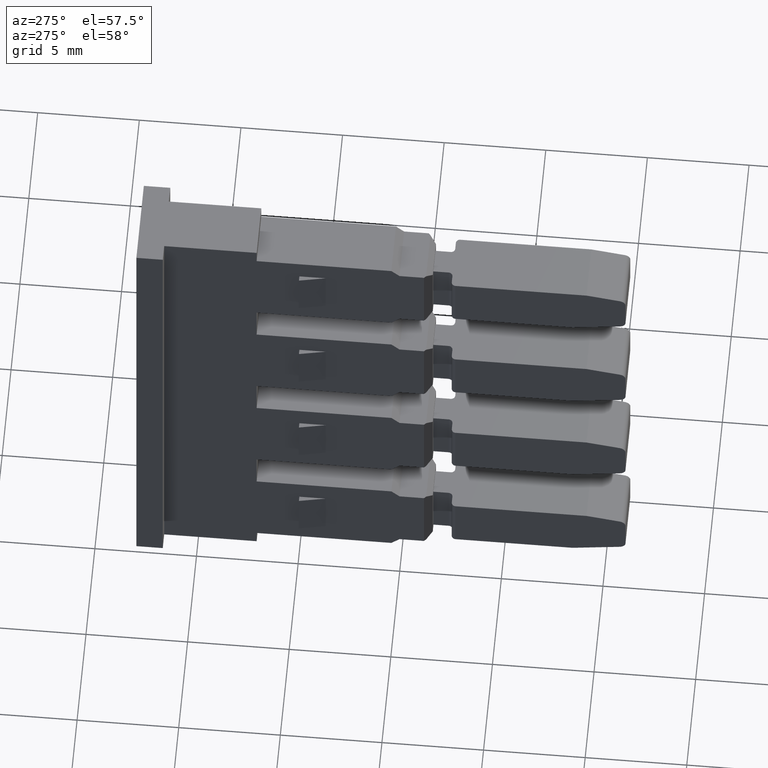
[diagram: clean part render]
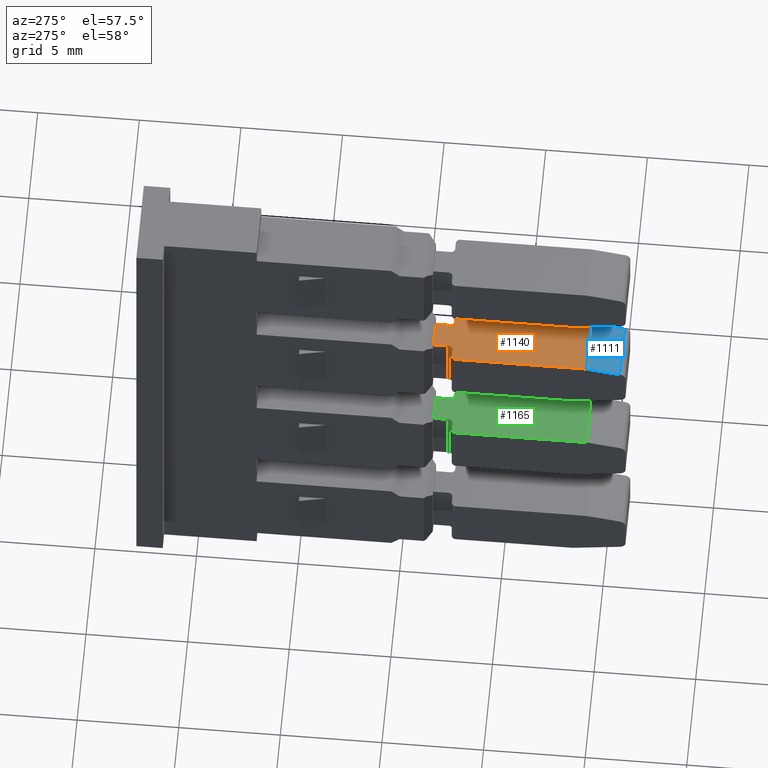
[diagram: same view with three faces highlighted in distinct colors, each labeled with its STEP entity id]
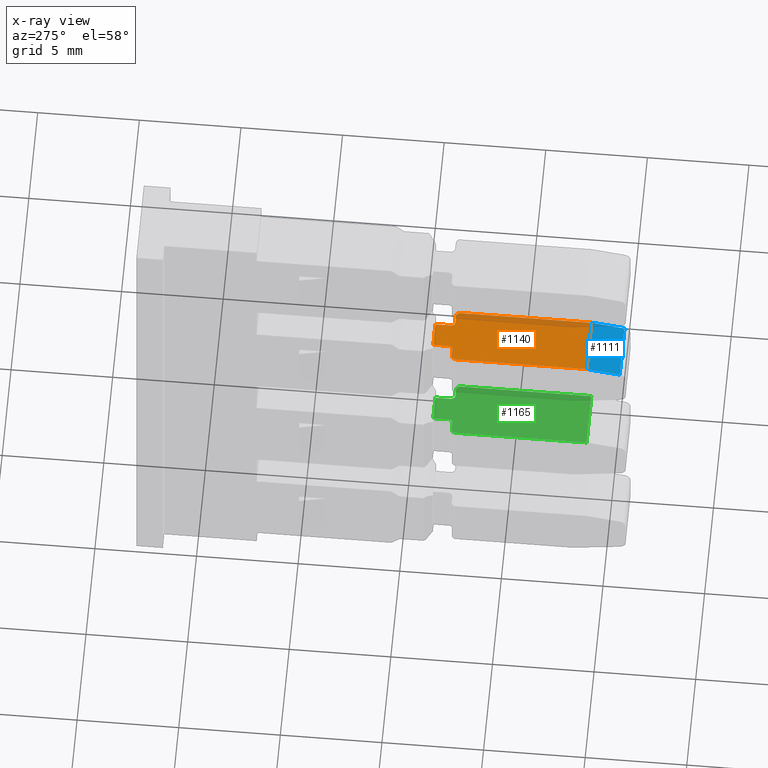
[diagram: x-ray of the same camera — body ghosted, the three highlighted faces saturated]
A machine part, auxiliary view with three faces highlighted in distinct colors.
The next image is the same camera in x-ray (body ghosted, the three faces saturated) — at least one of them is partly hidden behind the body in this view.
Their STEP definitions:

[orange] entity #1140 — the highlighted planar face has unit normal (-0, -0, 1).
#2 = CIRCLE ( 'NONE', #6, 0.1999999999999779700 ) ;
#3 = CIRCLE ( 'NONE', #4, 0.1999999999999779700 ) ;
#4 = AXIS2_PLACEMENT_3D ( 'NONE', #3200, #3173, #3201 ) ;
#6 = AXIS2_PLACEMENT_3D ( 'NONE', #3179, #3192, #3198 ) ;
#19 = AXIS2_PLACEMENT_3D ( 'NONE', #3280, #3293, #3294 ) ;
#27 = VECTOR ( 'NONE', #3220, 1000.000000000000000 ) ;
#30 = AXIS2_PLACEMENT_3D ( 'NONE', #3229, #3225, #3242 ) ;
#35 = CIRCLE ( 'NONE', #30, 0.1999999999999779700 ) ;
#36 = VECTOR ( 'NONE', #3297, 1000.000000000000200 ) ;
#37 = CIRCLE ( 'NONE', #19, 0.1999999999999779700 ) ;
#55 = VECTOR ( 'NONE', #2338, 1000.000000000000000 ) ;
#100 = VECTOR ( 'NONE', #2260, 1000.000000000000200 ) ;
#116 = VECTOR ( 'NONE', #2423, 1000.000000000000100 ) ;
#525 = AXIS2_PLACEMENT_3D ( 'NONE', #3995, #3989, #3990 ) ;
#650 = VECTOR ( 'NONE', #3217, 1000.000000000000000 ) ;
#654 = VECTOR ( 'NONE', #3120, 1000.000000000000000 ) ;
#657 = VECTOR ( 'NONE', #3187, 1000.000000000000100 ) ;
#660 = EDGE_CURVE ( 'NONE', #1624, #1625, #3130, .T. ) ;
#665 = EDGE_CURVE ( 'NONE', #1642, #1647, #3137, .T. ) ;
#666 = EDGE_CURVE ( 'NONE', #1622, #1647, #3191, .T. ) ;
#668 = EDGE_CURVE ( 'NONE', #1622, #1656, #3, .T. ) ;
#670 = EDGE_CURVE ( 'NONE', #1625, #1651, #2, .T. ) ;
#680 = EDGE_CURVE ( 'NONE', #1627, #1635, #35, .T. ) ;
#690 = EDGE_CURVE ( 'NONE', #1656, #1627, #3259, .T. ) ;
#702 = EDGE_CURVE ( 'NONE', #1609, #1624, #37, .T. ) ;
#703 = EDGE_CURVE ( 'NONE', #1642, #1651, #3302, .T. ) ;
#716 = EDGE_CURVE ( 'NONE', #1635, #1660, #2240, .T. ) ;
#740 = EDGE_CURVE ( 'NONE', #1675, #1609, #2353, .T. ) ;
#768 = EDGE_CURVE ( 'NONE', #1660, #1675, #2438, .T. ) ;
#1140 = ADVANCED_FACE ( 'NONE', ( #3987 ), #3988, .T. ) ;
#1389 = ORIENTED_EDGE ( 'NONE', *, *, #768, .T. ) ;
#1398 = ORIENTED_EDGE ( 'NONE', *, *, #702, .T. ) ;
#1401 = ORIENTED_EDGE ( 'NONE', *, *, #690, .T. ) ;
#1412 = ORIENTED_EDGE ( 'NONE', *, *, #680, .T. ) ;
#1427 = ORIENTED_EDGE ( 'NONE', *, *, #716, .T. ) ;
#1432 = ORIENTED_EDGE ( 'NONE', *, *, #660, .T. ) ;
#1437 = ORIENTED_EDGE ( 'NONE', *, *, #740, .T. ) ;
#1446 = ORIENTED_EDGE ( 'NONE', *, *, #670, .T. ) ;
#1481 = ORIENTED_EDGE ( 'NONE', *, *, #666, .F. ) ;
#1504 = ORIENTED_EDGE ( 'NONE', *, *, #703, .F. ) ;
#1506 = ORIENTED_EDGE ( 'NONE', *, *, #665, .T. ) ;
#1509 = ORIENTED_EDGE ( 'NONE', *, *, #668, .T. ) ;
#1609 = VERTEX_POINT ( 'NONE', #4668 ) ;
#1622 = VERTEX_POINT ( 'NONE', #4651 ) ;
#1624 = VERTEX_POINT ( 'NONE', #4653 ) ;
#1625 = VERTEX_POINT ( 'NONE', #4675 ) ;
#1627 = VERTEX_POINT ( 'NONE', #4681 ) ;
#1635 = VERTEX_POINT ( 'NONE', #4684 ) ;
#1642 = VERTEX_POINT ( 'NONE', #4730 ) ;
#1647 = VERTEX_POINT ( 'NONE', #4717 ) ;
#1651 = VERTEX_POINT ( 'NONE', #4757 ) ;
#1656 = VERTEX_POINT ( 'NONE', #4754 ) ;
#1660 = VERTEX_POINT ( 'NONE', #4749 ) ;
#1675 = VERTEX_POINT ( 'NONE', #4747 ) ;
#1900 = EDGE_LOOP ( 'NONE', ( #1401, #1412, #1427, #1389, #1437, #1398, #1432, #1446, #1504, #1506, #1481, #1509 ) ) ;
#2240 = LINE ( 'NONE', #2242, #100 ) ;
#2242 = CARTESIAN_POINT ( 'NONE',  ( 1392.682646574239900, 1099.575047856852300, 1.500000000192784700 ) ) ;
#2260 = DIRECTION ( 'NONE',  ( 9.483855583750710300E-006, 0.9999999999550282000, 1.418215388288594500E-012 ) ) ;
#2338 = DIRECTION ( 'NONE',  ( 0.0000000000000000000, -1.000000000000000000, -1.418215371961189400E-012 ) ) ;
#2341 = CARTESIAN_POINT ( 'NONE',  ( 1391.482304226623000, 1072.329111112720100, 1.500000000154138900 ) ) ;
#2353 = LINE ( 'NONE', #2341, #55 ) ;
#2415 = CARTESIAN_POINT ( 'NONE',  ( 1392.682297049867900, 1063.477105422906800, 1.500000000141587200 ) ) ;
#2423 = DIRECTION ( 'NONE',  ( -0.9999999999550282000, 9.483848618906044600E-006, -1.807014427811587200E-015 ) ) ;
#2438 = LINE ( 'NONE', #2415, #116 ) ;
#3120 = DIRECTION ( 'NONE',  ( -1.000000000000000000, 2.451137064545806300E-027, -1.728324987167663900E-015 ) ) ;
#3130 = LINE ( 'NONE', #3168, #654 ) ;
#3137 = LINE ( 'NONE', #3159, #657 ) ;
#3159 = CARTESIAN_POINT ( 'NONE',  ( 1390.984398344382700, 1055.875568134593800, 1.500000000130803400 ) ) ;
#3168 = CARTESIAN_POINT ( 'NONE',  ( 1392.082388177684200, 1062.520390669162000, 1.500000000140228900 ) ) ;
#3173 = DIRECTION ( 'NONE',  ( 0.0000000000000000000, 0.0000000000000000000, 1.000000000000000000 ) ) ;
#3179 = CARTESIAN_POINT ( 'NONE',  ( 1390.934459466150200, 1062.320391597015900, 1.500000000138654400 ) ) ;
#3186 = CARTESIAN_POINT ( 'NONE',  ( 1393.429974878271900, 1046.275396763449900, 1.500000000140230700 ) ) ;
#3187 = DIRECTION ( 'NONE',  ( 0.9999999999550282000, -9.483852898471060400E-006, 1.777649702392805700E-015 ) ) ;
#3191 = LINE ( 'NONE', #3186, #650 ) ;
#3192 = DIRECTION ( 'NONE',  ( -3.653909838371683000E-024, 3.465315322472135600E-029, 1.000000000000000000 ) ) ;
#3198 = DIRECTION ( 'NONE',  ( 1.000000000000000000, 0.0000000000000000000, 0.0000000000000000000 ) ) ;
#3200 = CARTESIAN_POINT ( 'NONE',  ( 1393.230127046556600, 1062.320374567164400, 1.500000000140230500 ) ) ;
#3201 = DIRECTION ( 'NONE',  ( 1.000000000000000000, 0.0000000000000000000, 0.0000000000000000000 ) ) ;
#3217 = DIRECTION ( 'NONE',  ( -9.483858160132053900E-006, -0.9999999999550282000, -0.0000000000000000000 ) ) ;
#3220 = DIRECTION ( 'NONE',  ( -1.000000000000000000, 2.451137064545806300E-027, -1.728324987167663900E-015 ) ) ;
#3225 = DIRECTION ( 'NONE',  ( 1.714874837238479500E-015, -1.626362530130914600E-020, -1.000000000000000000 ) ) ;
#3229 = CARTESIAN_POINT ( 'NONE',  ( 1392.882297049858800, 1062.720375494987400, 1.500000000140229800 ) ) ;
#3242 = DIRECTION ( 'NONE',  ( -1.000000000000000000, 0.0000000000000000000, -2.168404344971247500E-015 ) ) ;
#3251 = CARTESIAN_POINT ( 'NONE',  ( 1392.082388177684200, 1062.520374567159700, 1.500000000140228900 ) ) ;
#3259 = LINE ( 'NONE', #3251, #27 ) ;
#3280 = CARTESIAN_POINT ( 'NONE',  ( 1391.282297049932600, 1062.720390669156400, 1.500000000140784100 ) ) ;
#3293 = DIRECTION ( 'NONE',  ( 1.714874837238484400E-015, -1.626362530130919100E-020, -1.000000000000000000 ) ) ;
#3294 = DIRECTION ( 'NONE',  ( 1.000000000000000000, 0.0000000000000000000, 2.168404344971247500E-015 ) ) ;
#3297 = DIRECTION ( 'NONE',  ( 9.483853007369366800E-006, 0.9999999999550282000, -0.0000000000000000000 ) ) ;
#3302 = LINE ( 'NONE', #3303, #36 ) ;
#3303 = CARTESIAN_POINT ( 'NONE',  ( 1390.734307297966100, 1046.275417586839900, 1.500000000136007200 ) ) ;
#3987 = FACE_OUTER_BOUND ( 'NONE', #1900, .T. ) ;
#3988 = PLANE ( 'NONE',  #525 ) ;
#3989 = DIRECTION ( 'NONE',  ( -1.728324987167663900E-015, -1.418215371961189400E-012, 1.000000000000000000 ) ) ;
#3990 = DIRECTION ( 'NONE',  ( 0.0000000000000000000, -1.000000000000000000, -1.418215371961189400E-012 ) ) ;
#3995 = CARTESIAN_POINT ( 'NONE',  ( 1392.082388177684200, 1072.329111112720100, 1.500000000154140000 ) ) ;
#4651 = CARTESIAN_POINT ( 'NONE',  ( 1393.430127046554400, 1062.320373618778600, 1.500000000140230700 ) ) ;
#4653 = CARTESIAN_POINT ( 'NONE',  ( 1391.282296812836200, 1062.520390669159500, 1.500000000140784100 ) ) ;
#4668 = CARTESIAN_POINT ( 'NONE',  ( 1391.482300638278000, 1062.720390194980800, 1.500000000140784300 ) ) ;
#4675 = CARTESIAN_POINT ( 'NONE',  ( 1390.934459703250000, 1062.520391133091400, 1.500000000138654400 ) ) ;
#4681 = CARTESIAN_POINT ( 'NONE',  ( 1392.882296812762400, 1062.520375031073900, 1.500000000140229800 ) ) ;
#4684 = CARTESIAN_POINT ( 'NONE',  ( 1392.682297049863100, 1062.720376917582800, 1.500000000140368800 ) ) ;
#4717 = CARTESIAN_POINT ( 'NONE',  ( 1393.430065924738100, 1055.875547311211200, 1.500000000137393900 ) ) ;
#4730 = CARTESIAN_POINT ( 'NONE',  ( 1390.734398344382700, 1055.875568134593800, 1.500000000135636600 ) ) ;
#4747 = CARTESIAN_POINT ( 'NONE',  ( 1391.482304226623000, 1063.477116803461300, 1.500000000141583900 ) ) ;
#4749 = CARTESIAN_POINT ( 'NONE',  ( 1392.682304226567800, 1063.477105422838600, 1.500000000141587200 ) ) ;
#4754 = CARTESIAN_POINT ( 'NONE',  ( 1393.230127046556600, 1062.520374567159700, 1.500000000140230900 ) ) ;
#4757 = CARTESIAN_POINT ( 'NONE',  ( 1390.734459466159300, 1062.320393493786700, 1.500000000137330800 ) ) ;

[blue] entity #1111 — the highlighted planar face has unit normal (0, 0.1736, -0.9848).
#23 = VECTOR ( 'NONE', #3291, 1000.000000000000200 ) ;
#38 = VECTOR ( 'NONE', #3279, 1000.000000000000100 ) ;
#450 = AXIS2_PLACEMENT_3D ( 'NONE', #3815, #3795, #3818 ) ;
#649 = VECTOR ( 'NONE', #3123, 1000.000000000000200 ) ;
#657 = VECTOR ( 'NONE', #3187, 1000.000000000000100 ) ;
#662 = EDGE_CURVE ( 'NONE', #1646, #1642, #3150, .T. ) ;
#665 = EDGE_CURVE ( 'NONE', #1642, #1647, #3137, .T. ) ;
#699 = EDGE_CURVE ( 'NONE', #1616, #1646, #3304, .T. ) ;
#701 = EDGE_CURVE ( 'NONE', #1647, #1616, #3300, .T. ) ;
#1111 = ADVANCED_FACE ( 'NONE', ( #3803 ), #3840, .F. ) ;
#1399 = ORIENTED_EDGE ( 'NONE', *, *, #699, .F. ) ;
#1404 = ORIENTED_EDGE ( 'NONE', *, *, #665, .F. ) ;
#1420 = ORIENTED_EDGE ( 'NONE', *, *, #662, .F. ) ;
#1442 = ORIENTED_EDGE ( 'NONE', *, *, #701, .F. ) ;
#1616 = VERTEX_POINT ( 'NONE', #4670 ) ;
#1642 = VERTEX_POINT ( 'NONE', #4730 ) ;
#1646 = VERTEX_POINT ( 'NONE', #4709 ) ;
#1647 = VERTEX_POINT ( 'NONE', #4717 ) ;
#1909 = EDGE_LOOP ( 'NONE', ( #1404, #1420, #1399, #1442 ) ) ;
#3123 = DIRECTION ( 'NONE',  ( 9.339771988604050900E-006, 0.9848077529676954000, 0.1736481776682011800 ) ) ;
#3137 = LINE ( 'NONE', #3159, #657 ) ;
#3150 = LINE ( 'NONE', #3171, #649 ) ;
#3159 = CARTESIAN_POINT ( 'NONE',  ( 1390.984398344382700, 1055.875568134593800, 1.500000000130803400 ) ) ;
#3171 = CARTESIAN_POINT ( 'NONE',  ( 1390.734382873529500, 1054.244284602283200, 1.212360700193368100 ) ) ;
#3187 = DIRECTION ( 'NONE',  ( 0.9999999999550282000, -9.483852898471060400E-006, 1.777649702392805700E-015 ) ) ;
#3271 = CARTESIAN_POINT ( 'NONE',  ( 1393.180050453875800, 1054.244263778889000, 1.212360700193393400 ) ) ;
#3279 = DIRECTION ( 'NONE',  ( -9.339777484562960100E-006, -0.9848077529676954000, -0.1736481776682013400 ) ) ;
#3291 = DIRECTION ( 'NONE',  ( -0.9999999999550282000, 9.483855527851807800E-006, -1.145596474880113500E-014 ) ) ;
#3292 = CARTESIAN_POINT ( 'NONE',  ( 1393.430065924738300, 1055.875547311204600, 1.500000000141142900 ) ) ;
#3300 = LINE ( 'NONE', #3292, #38 ) ;
#3304 = LINE ( 'NONE', #3271, #23 ) ;
#3795 = DIRECTION ( 'NONE',  ( 1.646854241075528400E-006, 0.1736481776603922600, -0.9848077530119840900 ) ) ;
#3803 = FACE_OUTER_BOUND ( 'NONE', #1909, .T. ) ;
#3815 = CARTESIAN_POINT ( 'NONE',  ( 1381.908886635870900, 1055.875654205436100, 1.500000000140211600 ) ) ;
#3818 = DIRECTION ( 'NONE',  ( 0.0000000000000000000, 0.9848077530133194600, 0.1736481776606277300 ) ) ;
#3840 = PLANE ( 'NONE',  #450 ) ;
#4670 = CARTESIAN_POINT ( 'NONE',  ( 1393.430050453876000, 1054.244263778889300, 1.212360700193435800 ) ) ;
#4709 = CARTESIAN_POINT ( 'NONE',  ( 1390.734382873529500, 1054.244284602283400, 1.212360700193411100 ) ) ;
#4717 = CARTESIAN_POINT ( 'NONE',  ( 1393.430065924738100, 1055.875547311211200, 1.500000000137393900 ) ) ;
#4730 = CARTESIAN_POINT ( 'NONE',  ( 1390.734398344382700, 1055.875568134593800, 1.500000000135636600 ) ) ;

[green] entity #1165 — the highlighted planar face has unit normal (-0, -0, 1).
#183 = AXIS2_PLACEMENT_3D ( 'NONE', #2691, #2692, #2752 ) ;
#213 = CIRCLE ( 'NONE', #183, 0.1999999999999779700 ) ;
#229 = VECTOR ( 'NONE', #4159, 1000.000000000000000 ) ;
#287 = AXIS2_PLACEMENT_3D ( 'NONE', #3312, #3340, #3341 ) ;
#294 = CIRCLE ( 'NONE', #287, 0.1999999999999779700 ) ;
#297 = VECTOR ( 'NONE', #4265, 1000.000000000000100 ) ;
#322 = CIRCLE ( 'NONE', #342, 0.1999999999999779700 ) ;
#342 = AXIS2_PLACEMENT_3D ( 'NONE', #3347, #3348, #3318 ) ;
#352 = VECTOR ( 'NONE', #3427, 1000.000000000000100 ) ;
#370 = VECTOR ( 'NONE', #3413, 1000.000000000000000 ) ;
#374 = VECTOR ( 'NONE', #3487, 1000.000000000000200 ) ;
#380 = VECTOR ( 'NONE', #3384, 1000.000000000000000 ) ;
#386 = AXIS2_PLACEMENT_3D ( 'NONE', #3504, #3522, #3525 ) ;
#392 = VECTOR ( 'NONE', #3489, 1000.000000000000000 ) ;
#400 = VECTOR ( 'NONE', #3490, 1000.000000000000200 ) ;
#402 = CIRCLE ( 'NONE', #386, 0.1999999999999779700 ) ;
#551 = AXIS2_PLACEMENT_3D ( 'NONE', #4092, #4101, #4056 ) ;
#868 = EDGE_CURVE ( 'NONE', #1778, #1836, #213, .T. ) ;
#905 = EDGE_CURVE ( 'NONE', #1778, #1814, #4190, .T. ) ;
#932 = EDGE_CURVE ( 'NONE', #1843, #1814, #4280, .T. ) ;
#962 = EDGE_CURVE ( 'NONE', #1852, #1907, #322, .T. ) ;
#970 = EDGE_CURVE ( 'NONE', #1901, #1853, #294, .T. ) ;
#989 = EDGE_CURVE ( 'NONE', #1836, #1852, #3379, .T. ) ;
#992 = EDGE_CURVE ( 'NONE', #1885, #1794, #3396, .T. ) ;
#1003 = EDGE_CURVE ( 'NONE', #1794, #1901, #3409, .T. ) ;
#1011 = EDGE_CURVE ( 'NONE', #1843, #1736, #3459, .T. ) ;
#1019 = EDGE_CURVE ( 'NONE', #1853, #1831, #3417, .T. ) ;
#1020 = EDGE_CURVE ( 'NONE', #1907, #1885, #3468, .T. ) ;
#1022 = EDGE_CURVE ( 'NONE', #1831, #1736, #402, .T. ) ;
#1165 = ADVANCED_FACE ( 'NONE', ( #4070 ), #4062, .T. ) ;
#1736 = VERTEX_POINT ( 'NONE', #4805 ) ;
#1778 = VERTEX_POINT ( 'NONE', #4856 ) ;
#1794 = VERTEX_POINT ( 'NONE', #4839 ) ;
#1814 = VERTEX_POINT ( 'NONE', #4870 ) ;
#1831 = VERTEX_POINT ( 'NONE', #4921 ) ;
#1836 = VERTEX_POINT ( 'NONE', #4932 ) ;
#1843 = VERTEX_POINT ( 'NONE', #4931 ) ;
#1852 = VERTEX_POINT ( 'NONE', #4955 ) ;
#1853 = VERTEX_POINT ( 'NONE', #4917 ) ;
#1885 = VERTEX_POINT ( 'NONE', #4922 ) ;
#1901 = VERTEX_POINT ( 'NONE', #4929 ) ;
#1907 = VERTEX_POINT ( 'NONE', #4989 ) ;
#2062 = EDGE_LOOP ( 'NONE', ( #3145, #3122, #3125, #3167, #3131, #3146, #3121, #3124, #3142, #3143, #3089, #3133 ) ) ;
#2691 = CARTESIAN_POINT ( 'NONE',  ( 1393.230127046556600, 1062.320374567162200, -5.199999999859770100 ) ) ;
#2692 = DIRECTION ( 'NONE',  ( 0.0000000000000000000, 0.0000000000000000000, 1.000000000000000000 ) ) ;
#2752 = DIRECTION ( 'NONE',  ( 1.000000000000000000, 0.0000000000000000000, 0.0000000000000000000 ) ) ;
#3089 = ORIENTED_EDGE ( 'NONE', *, *, #905, .F. ) ;
#3121 = ORIENTED_EDGE ( 'NONE', *, *, #1019, .T. ) ;
#3122 = ORIENTED_EDGE ( 'NONE', *, *, #962, .T. ) ;
#3124 = ORIENTED_EDGE ( 'NONE', *, *, #1022, .T. ) ;
#3125 = ORIENTED_EDGE ( 'NONE', *, *, #1020, .T. ) ;
#3131 = ORIENTED_EDGE ( 'NONE', *, *, #1003, .T. ) ;
#3133 = ORIENTED_EDGE ( 'NONE', *, *, #868, .T. ) ;
#3142 = ORIENTED_EDGE ( 'NONE', *, *, #1011, .F. ) ;
#3143 = ORIENTED_EDGE ( 'NONE', *, *, #932, .T. ) ;
#3145 = ORIENTED_EDGE ( 'NONE', *, *, #989, .T. ) ;
#3146 = ORIENTED_EDGE ( 'NONE', *, *, #970, .T. ) ;
#3167 = ORIENTED_EDGE ( 'NONE', *, *, #992, .T. ) ;
#3312 = CARTESIAN_POINT ( 'NONE',  ( 1391.282297049932600, 1062.720390669154300, -5.199999999859216800 ) ) ;
#3318 = DIRECTION ( 'NONE',  ( -1.000000000000000000, 0.0000000000000000000, 0.0000000000000000000 ) ) ;
#3340 = DIRECTION ( 'NONE',  ( 1.714874837238484400E-015, -1.626362530130919100E-020, -1.000000000000000000 ) ) ;
#3341 = DIRECTION ( 'NONE',  ( 1.000000000000000000, 0.0000000000000000000, 0.0000000000000000000 ) ) ;
#3347 = CARTESIAN_POINT ( 'NONE',  ( 1392.882297049858800, 1062.720375494985300, -5.199999999859770100 ) ) ;
#3348 = DIRECTION ( 'NONE',  ( 1.714874837238479500E-015, -1.626362530130914600E-020, -1.000000000000000000 ) ) ;
#3379 = LINE ( 'NONE', #3382, #380 ) ;
#3382 = CARTESIAN_POINT ( 'NONE',  ( 1392.082388177684200, 1062.520374567157400, -5.199999999859771900 ) ) ;
#3384 = DIRECTION ( 'NONE',  ( -1.000000000000000000, 2.451137064545806300E-027, -1.728324987167663900E-015 ) ) ;
#3396 = LINE ( 'NONE', #3412, #352 ) ;
#3402 = CARTESIAN_POINT ( 'NONE',  ( 1391.482304226623000, 1072.329111112717800, -5.199999999845861300 ) ) ;
#3409 = LINE ( 'NONE', #3402, #370 ) ;
#3412 = CARTESIAN_POINT ( 'NONE',  ( 1392.682297049867900, 1063.477105422904700, -5.199999999858413000 ) ) ;
#3413 = DIRECTION ( 'NONE',  ( 0.0000000000000000000, -1.000000000000000000, -1.418215371961189400E-012 ) ) ;
#3417 = LINE ( 'NONE', #3453, #392 ) ;
#3427 = DIRECTION ( 'NONE',  ( -0.9999999999550282000, 9.483848618906044600E-006, -1.807014427811587200E-015 ) ) ;
#3449 = CARTESIAN_POINT ( 'NONE',  ( 1392.682646574239900, 1099.575047856850000, -5.199999999807215700 ) ) ;
#3453 = CARTESIAN_POINT ( 'NONE',  ( 1392.082388177684200, 1062.520390669159700, -5.199999999859771900 ) ) ;
#3459 = LINE ( 'NONE', #3464, #374 ) ;
#3464 = CARTESIAN_POINT ( 'NONE',  ( 1390.734307297966100, 1046.275417586837600, -5.199999999863993400 ) ) ;
#3468 = LINE ( 'NONE', #3449, #400 ) ;
#3487 = DIRECTION ( 'NONE',  ( 9.483853007369366800E-006, 0.9999999999550282000, -0.0000000000000000000 ) ) ;
#3489 = DIRECTION ( 'NONE',  ( -1.000000000000000000, 2.451137064545806300E-027, -1.728324987167663900E-015 ) ) ;
#3490 = DIRECTION ( 'NONE',  ( 9.483855583750710300E-006, 0.9999999999550282000, 1.418215388288594500E-012 ) ) ;
#3504 = CARTESIAN_POINT ( 'NONE',  ( 1390.934459466150200, 1062.320391597013700, -5.199999999861345800 ) ) ;
#3522 = DIRECTION ( 'NONE',  ( -3.653909838371683000E-024, 3.465315322472135600E-029, 1.000000000000000000 ) ) ;
#3525 = DIRECTION ( 'NONE',  ( 1.000000000000000000, 0.0000000000000000000, 0.0000000000000000000 ) ) ;
#4056 = DIRECTION ( 'NONE',  ( 0.0000000000000000000, -1.000000000000000000, -1.418215371961189400E-012 ) ) ;
#4062 = PLANE ( 'NONE',  #551 ) ;
#4070 = FACE_OUTER_BOUND ( 'NONE', #2062, .T. ) ;
#4092 = CARTESIAN_POINT ( 'NONE',  ( 1392.082388177684200, 1072.329111112717800, -5.199999999845860400 ) ) ;
#4101 = DIRECTION ( 'NONE',  ( -1.728324987167663900E-015, -1.418215371961189400E-012, 1.000000000000000000 ) ) ;
#4159 = DIRECTION ( 'NONE',  ( -9.483858160132053900E-006, -0.9999999999550282000, -0.0000000000000000000 ) ) ;
#4179 = CARTESIAN_POINT ( 'NONE',  ( 1393.429974878271900, 1046.275396763447800, -5.199999999859770100 ) ) ;
#4190 = LINE ( 'NONE', #4179, #229 ) ;
#4256 = CARTESIAN_POINT ( 'NONE',  ( 1390.984398344382700, 1055.875568134591500, -5.199999999869196400 ) ) ;
#4265 = DIRECTION ( 'NONE',  ( 0.9999999999550282000, -9.483852898471060400E-006, 1.777649702392805700E-015 ) ) ;
#4280 = LINE ( 'NONE', #4256, #297 ) ;
#4805 = CARTESIAN_POINT ( 'NONE',  ( 1390.734459466159300, 1062.320393493784400, -5.199999999862669100 ) ) ;
#4839 = CARTESIAN_POINT ( 'NONE',  ( 1391.482304226623000, 1063.477116803459200, -5.199999999858416500 ) ) ;
#4856 = CARTESIAN_POINT ( 'NONE',  ( 1393.430127046554400, 1062.320373618776300, -5.199999999859770100 ) ) ;
#4870 = CARTESIAN_POINT ( 'NONE',  ( 1393.430065924738100, 1055.875547311208900, -5.199999999862606100 ) ) ;
#4917 = CARTESIAN_POINT ( 'NONE',  ( 1391.282296812836200, 1062.520390669157500, -5.199999999859216800 ) ) ;
#4921 = CARTESIAN_POINT ( 'NONE',  ( 1390.934459703250000, 1062.520391133089100, -5.199999999861345800 ) ) ;
#4922 = CARTESIAN_POINT ( 'NONE',  ( 1392.682304226567800, 1063.477105422836500, -5.199999999858413000 ) ) ;
#4929 = CARTESIAN_POINT ( 'NONE',  ( 1391.482300638278000, 1062.720390194978600, -5.199999999859215900 ) ) ;
#4931 = CARTESIAN_POINT ( 'NONE',  ( 1390.734398344382700, 1055.875568134591500, -5.199999999864363800 ) ) ;
#4932 = CARTESIAN_POINT ( 'NONE',  ( 1393.230127046556600, 1062.520374567157400, -5.199999999859769200 ) ) ;
#4955 = CARTESIAN_POINT ( 'NONE',  ( 1392.882296812762400, 1062.520375031071600, -5.199999999859770100 ) ) ;
#4989 = CARTESIAN_POINT ( 'NONE',  ( 1392.682297049863100, 1062.720376917580600, -5.199999999859631600 ) ) ;